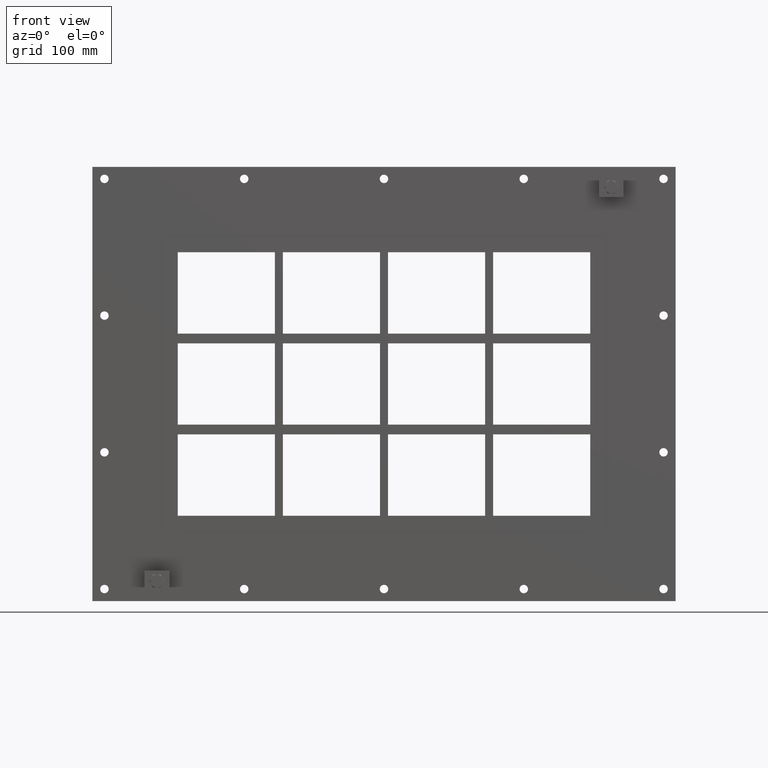
[diagram: clean part render]
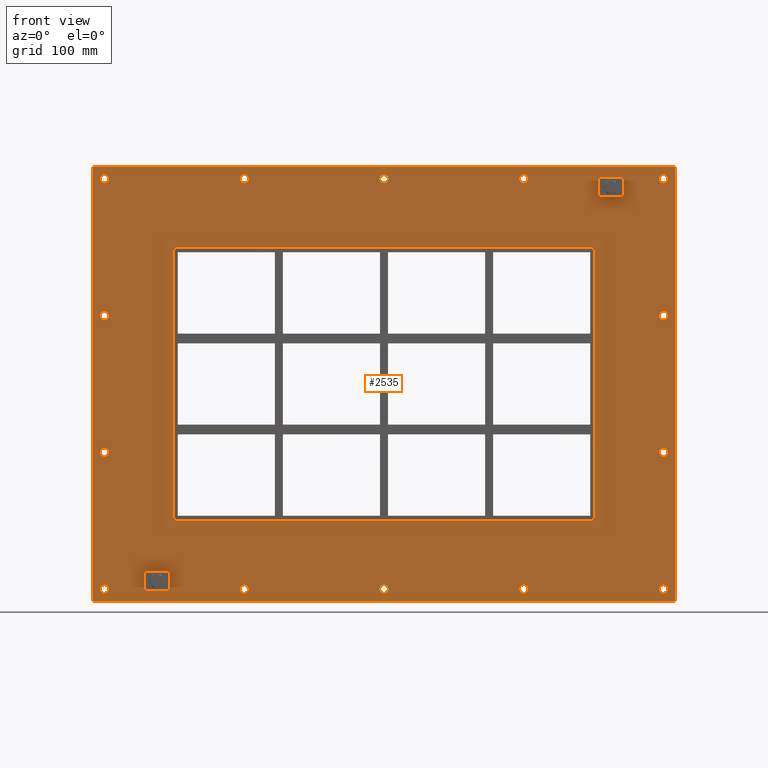
[diagram: same view with one face highlighted and labeled with its STEP entity id]
A machine part, front view. The second image highlights one B-rep face of the part: STEP entity #2535.
In plain terms, the highlighted planar face has unit normal (0, 1, 0).
Its self-contained STEP definition (entity closure, byte-faithful):
#84=CARTESIAN_POINT('',(-341.75000000000017,0.0,-254.5));
#85=VERTEX_POINT('',#84);
#86=CARTESIAN_POINT('',(-347.00000000000017,0.0,-254.5));
#87=DIRECTION('',(0.0,1.0,0.0));
#88=DIRECTION('',(1.0,0.0,0.0));
#89=AXIS2_PLACEMENT_3D('',#86,#87,#88);
#90=CIRCLE('',#89,5.25);
#91=EDGE_CURVE('',#85,#85,#90,.T.);
#112=CARTESIAN_POINT('',(352.24999999999989,0.0,-84.800000000000011));
#113=VERTEX_POINT('',#112);
#114=CARTESIAN_POINT('',(346.99999999999989,0.0,-84.800000000000011));
#115=DIRECTION('',(0.0,1.0,0.0));
#116=DIRECTION('',(1.0,0.0,0.0));
#117=AXIS2_PLACEMENT_3D('',#114,#115,#116);
#118=CIRCLE('',#117,5.25);
#119=EDGE_CURVE('',#113,#113,#118,.T.);
#140=CARTESIAN_POINT('',(-341.75000000000017,0.0,-84.800000000000011));
#141=VERTEX_POINT('',#140);
#142=CARTESIAN_POINT('',(-347.00000000000017,0.0,-84.800000000000011));
#143=DIRECTION('',(0.0,1.0,0.0));
#144=DIRECTION('',(1.0,0.0,0.0));
#145=AXIS2_PLACEMENT_3D('',#142,#143,#144);
#146=CIRCLE('',#145,5.25);
#147=EDGE_CURVE('',#141,#141,#146,.T.);
#168=CARTESIAN_POINT('',(352.24999999999989,0.0,84.899999999999977));
#169=VERTEX_POINT('',#168);
#170=CARTESIAN_POINT('',(346.99999999999989,0.0,84.899999999999977));
#171=DIRECTION('',(0.0,1.0,0.0));
#172=DIRECTION('',(1.0,0.0,0.0));
#173=AXIS2_PLACEMENT_3D('',#170,#171,#172);
#174=CIRCLE('',#173,5.25);
#175=EDGE_CURVE('',#169,#169,#174,.T.);
#196=CARTESIAN_POINT('',(-341.75000000000017,0.0,84.899999999999977));
#197=VERTEX_POINT('',#196);
#198=CARTESIAN_POINT('',(-347.00000000000017,0.0,84.899999999999977));
#199=DIRECTION('',(0.0,1.0,0.0));
#200=DIRECTION('',(1.0,0.0,0.0));
#201=AXIS2_PLACEMENT_3D('',#198,#199,#200);
#202=CIRCLE('',#201,5.25);
#203=EDGE_CURVE('',#197,#197,#202,.T.);
#224=CARTESIAN_POINT('',(-168.25000000000017,0.0,254.59999999999997));
#225=VERTEX_POINT('',#224);
#226=CARTESIAN_POINT('',(-173.50000000000017,0.0,254.59999999999997));
#227=DIRECTION('',(0.0,1.0,0.0));
#228=DIRECTION('',(1.0,0.0,0.0));
#229=AXIS2_PLACEMENT_3D('',#226,#227,#228);
#230=CIRCLE('',#229,5.25);
#231=EDGE_CURVE('',#225,#225,#230,.T.);
#252=CARTESIAN_POINT('',(-168.25000000000017,0.0,-254.50000000000003));
#253=VERTEX_POINT('',#252);
#254=CARTESIAN_POINT('',(-173.50000000000017,0.0,-254.50000000000003));
#255=DIRECTION('',(0.0,1.0,0.0));
#256=DIRECTION('',(1.0,0.0,0.0));
#257=AXIS2_PLACEMENT_3D('',#254,#255,#256);
#258=CIRCLE('',#257,5.25);
#259=EDGE_CURVE('',#253,#253,#258,.T.);
#280=CARTESIAN_POINT('',(5.249999999999844,0.0,254.59999999999997));
#281=VERTEX_POINT('',#280);
#282=CARTESIAN_POINT('',(-1.421085E-013,0.0,254.59999999999997));
#283=DIRECTION('',(0.0,1.0,0.0));
#284=DIRECTION('',(1.0,0.0,0.0));
#285=AXIS2_PLACEMENT_3D('',#282,#283,#284);
#286=CIRCLE('',#285,5.25);
#287=EDGE_CURVE('',#281,#281,#286,.T.);
#308=CARTESIAN_POINT('',(5.249999999999844,0.0,-254.50000000000003));
#309=VERTEX_POINT('',#308);
#310=CARTESIAN_POINT('',(-1.421085E-013,0.0,-254.50000000000003));
#311=DIRECTION('',(0.0,1.0,0.0));
#312=DIRECTION('',(1.0,0.0,0.0));
#313=AXIS2_PLACEMENT_3D('',#310,#311,#312);
#314=CIRCLE('',#313,5.25);
#315=EDGE_CURVE('',#309,#309,#314,.T.);
#336=CARTESIAN_POINT('',(178.74999999999986,0.0,254.59999999999997));
#337=VERTEX_POINT('',#336);
#338=CARTESIAN_POINT('',(173.49999999999989,0.0,254.59999999999997));
#339=DIRECTION('',(0.0,1.0,0.0));
#340=DIRECTION('',(1.0,0.0,0.0));
#341=AXIS2_PLACEMENT_3D('',#338,#339,#340);
#342=CIRCLE('',#341,5.25);
#343=EDGE_CURVE('',#337,#337,#342,.T.);
#364=CARTESIAN_POINT('',(178.74999999999986,0.0,-254.50000000000003));
#365=VERTEX_POINT('',#364);
#366=CARTESIAN_POINT('',(173.49999999999989,0.0,-254.50000000000003));
#367=DIRECTION('',(0.0,1.0,0.0));
#368=DIRECTION('',(1.0,0.0,0.0));
#369=AXIS2_PLACEMENT_3D('',#366,#367,#368);
#370=CIRCLE('',#369,5.25);
#371=EDGE_CURVE('',#365,#365,#370,.T.);
#392=CARTESIAN_POINT('',(352.24999999999989,0.0,-254.50000000000003));
#393=VERTEX_POINT('',#392);
#394=CARTESIAN_POINT('',(346.99999999999989,0.0,-254.50000000000003));
#395=DIRECTION('',(0.0,1.0,0.0));
#396=DIRECTION('',(1.0,0.0,0.0));
#397=AXIS2_PLACEMENT_3D('',#394,#395,#396);
#398=CIRCLE('',#397,5.25);
#399=EDGE_CURVE('',#393,#393,#398,.T.);
#420=CARTESIAN_POINT('',(-341.75000000000017,0.0,254.59999999999997));
#421=VERTEX_POINT('',#420);
#422=CARTESIAN_POINT('',(-347.00000000000017,0.0,254.59999999999997));
#423=DIRECTION('',(0.0,1.0,0.0));
#424=DIRECTION('',(1.0,0.0,0.0));
#425=AXIS2_PLACEMENT_3D('',#422,#423,#424);
#426=CIRCLE('',#425,5.25);
#427=EDGE_CURVE('',#421,#421,#426,.T.);
#448=CARTESIAN_POINT('',(352.24999999999989,0.0,254.59999999999997));
#449=VERTEX_POINT('',#448);
#450=CARTESIAN_POINT('',(346.99999999999989,0.0,254.59999999999997));
#451=DIRECTION('',(0.0,1.0,0.0));
#452=DIRECTION('',(1.0,0.0,0.0));
#453=AXIS2_PLACEMENT_3D('',#450,#451,#452);
#454=CIRCLE('',#453,5.25);
#455=EDGE_CURVE('',#449,#449,#454,.T.);
#2384=CARTESIAN_POINT('',(-4.050600E-014,0.0,0.0));
#2385=DIRECTION('',(0.0,1.0,0.0));
#2386=DIRECTION('',(0.0,0.0,1.0));
#2387=AXIS2_PLACEMENT_3D('',#2384,#2385,#2386);
#2388=PLANE('',#2387);
#2389=CARTESIAN_POINT('',(-362.0,0.0,269.5));
#2390=VERTEX_POINT('',#2389);
#2391=CARTESIAN_POINT('',(361.99999999999994,0.0,269.5));
#2392=VERTEX_POINT('',#2391);
#2393=CARTESIAN_POINT('',(-362.0,0.0,269.5));
#2394=DIRECTION('',(1.0,0.0,0.0));
#2395=VECTOR('',#2394,724.0);
#2396=LINE('',#2393,#2395);
#2397=EDGE_CURVE('',#2390,#2392,#2396,.T.);
#2398=ORIENTED_EDGE('',*,*,#2397,.F.);
#2399=CARTESIAN_POINT('',(-362.0,0.0,-269.5));
#2400=VERTEX_POINT('',#2399);
#2401=CARTESIAN_POINT('',(-362.0,0.0,-269.5));
#2402=DIRECTION('',(0.0,0.0,1.0));
#2403=VECTOR('',#2402,539.0);
#2404=LINE('',#2401,#2403);
#2405=EDGE_CURVE('',#2400,#2390,#2404,.T.);
#2406=ORIENTED_EDGE('',*,*,#2405,.F.);
#2407=CARTESIAN_POINT('',(361.99999999999994,0.0,-269.5));
#2408=VERTEX_POINT('',#2407);
#2409=CARTESIAN_POINT('',(361.99999999999994,0.0,-269.5));
#2410=DIRECTION('',(-1.0,0.0,0.0));
#2411=VECTOR('',#2410,724.0);
#2412=LINE('',#2409,#2411);
#2413=EDGE_CURVE('',#2408,#2400,#2412,.T.);
#2414=ORIENTED_EDGE('',*,*,#2413,.F.);
#2415=CARTESIAN_POINT('',(361.99999999999994,0.0,269.5));
#2416=DIRECTION('',(0.0,0.0,-1.0));
#2417=VECTOR('',#2416,539.0);
#2418=LINE('',#2415,#2417);
#2419=EDGE_CURVE('',#2392,#2408,#2418,.T.);
#2420=ORIENTED_EDGE('',*,*,#2419,.F.);
#2421=EDGE_LOOP('',(#2398,#2406,#2414,#2420));
#2422=FACE_OUTER_BOUND('',#2421,.T.);
#2423=ORIENTED_EDGE('',*,*,#91,.T.);
#2424=EDGE_LOOP('',(#2423));
#2425=FACE_BOUND('',#2424,.T.);
#2426=ORIENTED_EDGE('',*,*,#119,.T.);
#2427=EDGE_LOOP('',(#2426));
#2428=FACE_BOUND('',#2427,.T.);
#2429=ORIENTED_EDGE('',*,*,#147,.T.);
#2430=EDGE_LOOP('',(#2429));
#2431=FACE_BOUND('',#2430,.T.);
#2432=ORIENTED_EDGE('',*,*,#175,.T.);
#2433=EDGE_LOOP('',(#2432));
#2434=FACE_BOUND('',#2433,.T.);
#2435=ORIENTED_EDGE('',*,*,#203,.T.);
#2436=EDGE_LOOP('',(#2435));
#2437=FACE_BOUND('',#2436,.T.);
#2438=ORIENTED_EDGE('',*,*,#231,.T.);
#2439=EDGE_LOOP('',(#2438));
#2440=FACE_BOUND('',#2439,.T.);
#2441=ORIENTED_EDGE('',*,*,#259,.T.);
#2442=EDGE_LOOP('',(#2441));
#2443=FACE_BOUND('',#2442,.T.);
#2444=ORIENTED_EDGE('',*,*,#287,.T.);
#2445=EDGE_LOOP('',(#2444));
#2446=FACE_BOUND('',#2445,.T.);
#2447=ORIENTED_EDGE('',*,*,#315,.T.);
#2448=EDGE_LOOP('',(#2447));
#2449=FACE_BOUND('',#2448,.T.);
#2450=ORIENTED_EDGE('',*,*,#343,.T.);
#2451=EDGE_LOOP('',(#2450));
#2452=FACE_BOUND('',#2451,.T.);
#2453=ORIENTED_EDGE('',*,*,#371,.T.);
#2454=EDGE_LOOP('',(#2453));
#2455=FACE_BOUND('',#2454,.T.);
#2456=ORIENTED_EDGE('',*,*,#399,.T.);
#2457=EDGE_LOOP('',(#2456));
#2458=FACE_BOUND('',#2457,.T.);
#2459=ORIENTED_EDGE('',*,*,#427,.T.);
#2460=EDGE_LOOP('',(#2459));
#2461=FACE_BOUND('',#2460,.T.);
#2462=ORIENTED_EDGE('',*,*,#455,.T.);
#2463=EDGE_LOOP('',(#2462));
#2464=FACE_BOUND('',#2463,.T.);
#2465=CARTESIAN_POINT('',(-256.0,0.0,169.50000000000011));
#2466=VERTEX_POINT('',#2465);
#2467=CARTESIAN_POINT('',(-262.0,0.0,163.50000000000009));
#2468=VERTEX_POINT('',#2467);
#2469=CARTESIAN_POINT('',(-256.0,0.0,163.50000000000009));
#2470=DIRECTION('',(0.0,-1.0,0.0));
#2471=DIRECTION('',(-0.707106781186548,0.0,0.707106781186548));
#2472=AXIS2_PLACEMENT_3D('',#2469,#2470,#2471);
#2473=CIRCLE('',#2472,6.000000000000002);
#2474=EDGE_CURVE('',#2466,#2468,#2473,.T.);
#2475=ORIENTED_EDGE('',*,*,#2474,.F.);
#2476=CARTESIAN_POINT('',(256.0,0.0,169.50000000000011));
#2477=VERTEX_POINT('',#2476);
#2478=CARTESIAN_POINT('',(255.99999999999997,0.0,169.50000000000011));
#2479=DIRECTION('',(-1.0,0.0,0.0));
#2480=VECTOR('',#2479,512.0);
#2481=LINE('',#2478,#2480);
#2482=EDGE_CURVE('',#2477,#2466,#2481,.T.);
#2483=ORIENTED_EDGE('',*,*,#2482,.F.);
#2484=CARTESIAN_POINT('',(262.0,0.0,163.50000000000009));
#2485=VERTEX_POINT('',#2484);
#2486=CARTESIAN_POINT('',(256.0,0.0,163.50000000000009));
#2487=DIRECTION('',(0.0,-1.0,0.0));
#2488=DIRECTION('',(0.707106781186548,0.0,0.707106781186548));
#2489=AXIS2_PLACEMENT_3D('',#2486,#2487,#2488);
#2490=CIRCLE('',#2489,6.000000000000002);
#2491=EDGE_CURVE('',#2485,#2477,#2490,.T.);
#2492=ORIENTED_EDGE('',*,*,#2491,.F.);
#2493=CARTESIAN_POINT('',(262.0,0.0,-163.49999999999994));
#2494=VERTEX_POINT('',#2493);
#2495=CARTESIAN_POINT('',(262.0,0.0,-163.49999999999994));
#2496=DIRECTION('',(0.0,0.0,1.0));
#2497=VECTOR('',#2496,327.0);
#2498=LINE('',#2495,#2497);
#2499=EDGE_CURVE('',#2494,#2485,#2498,.T.);
#2500=ORIENTED_EDGE('',*,*,#2499,.F.);
#2501=CARTESIAN_POINT('',(256.0,0.0,-169.49999999999994));
#2502=VERTEX_POINT('',#2501);
#2503=CARTESIAN_POINT('',(256.0,0.0,-163.49999999999994));
#2504=DIRECTION('',(0.0,-1.0,0.0));
#2505=DIRECTION('',(0.707106781186548,0.0,-0.707106781186548));
#2506=AXIS2_PLACEMENT_3D('',#2503,#2504,#2505);
#2507=CIRCLE('',#2506,6.000000000000002);
#2508=EDGE_CURVE('',#2502,#2494,#2507,.T.);
#2509=ORIENTED_EDGE('',*,*,#2508,.F.);
#2510=CARTESIAN_POINT('',(-256.0,0.0,-169.49999999999994));
#2511=VERTEX_POINT('',#2510);
#2512=CARTESIAN_POINT('',(-256.0,0.0,-169.49999999999994));
#2513=DIRECTION('',(1.0,0.0,0.0));
#2514=VECTOR('',#2513,512.0);
#2515=LINE('',#2512,#2514);
#2516=EDGE_CURVE('',#2511,#2502,#2515,.T.);
#2517=ORIENTED_EDGE('',*,*,#2516,.F.);
#2518=CARTESIAN_POINT('',(-262.0,0.0,-163.49999999999994));
#2519=VERTEX_POINT('',#2518);
#2520=CARTESIAN_POINT('',(-256.0,0.0,-163.49999999999994));
#2521=DIRECTION('',(0.0,-1.0,0.0));
#2522=DIRECTION('',(-0.707106781186548,0.0,-0.707106781186548));
#2523=AXIS2_PLACEMENT_3D('',#2520,#2521,#2522);
#2524=CIRCLE('',#2523,6.000000000000002);
#2525=EDGE_CURVE('',#2519,#2511,#2524,.T.);
#2526=ORIENTED_EDGE('',*,*,#2525,.F.);
#2527=CARTESIAN_POINT('',(-262.0,0.0,163.50000000000009));
#2528=DIRECTION('',(0.0,0.0,-1.0));
#2529=VECTOR('',#2528,327.0);
#2530=LINE('',#2527,#2529);
#2531=EDGE_CURVE('',#2468,#2519,#2530,.T.);
#2532=ORIENTED_EDGE('',*,*,#2531,.F.);
#2533=EDGE_LOOP('',(#2475,#2483,#2492,#2500,#2509,#2517,#2526,#2532));
#2534=FACE_BOUND('',#2533,.T.);
#2535=ADVANCED_FACE('',(#2422,#2425,#2428,#2431,#2434,#2437,#2440,#2443,#2446,#2449,#2452,#2455,#2458,#2461,#2464,#2534),#2388,.F.);